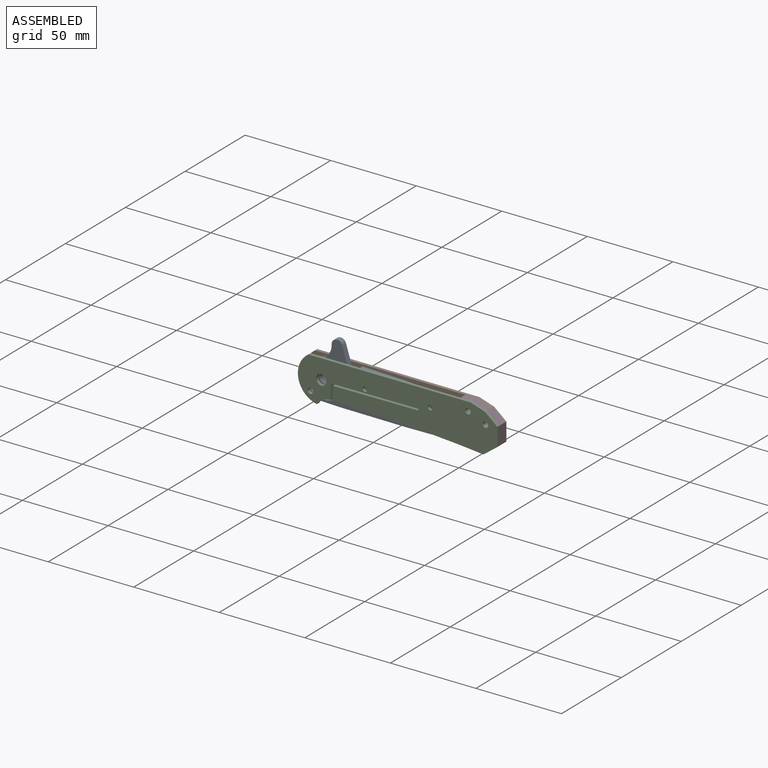
[diagram: assembled view]
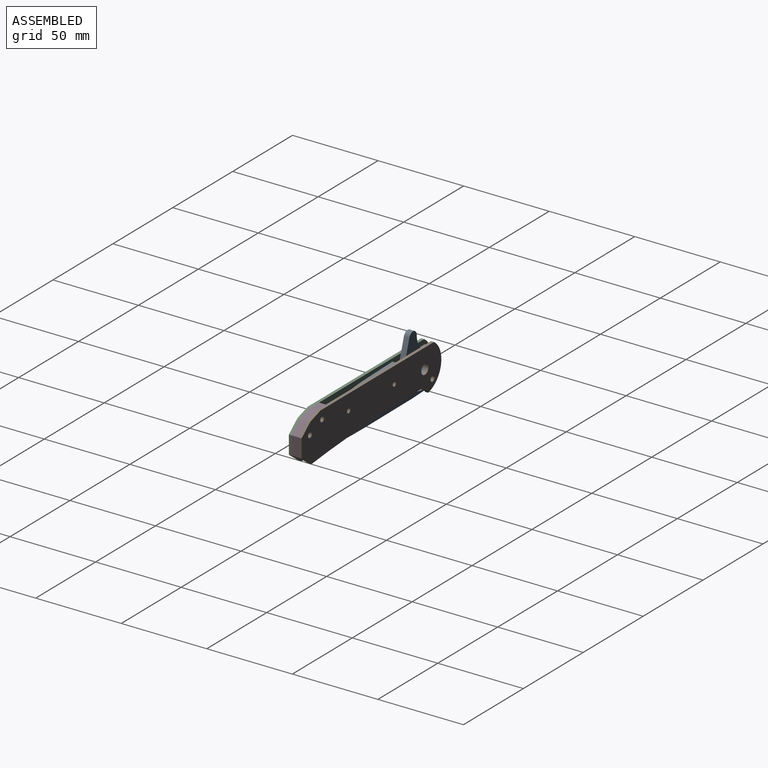
[diagram: assembled view, second angle]
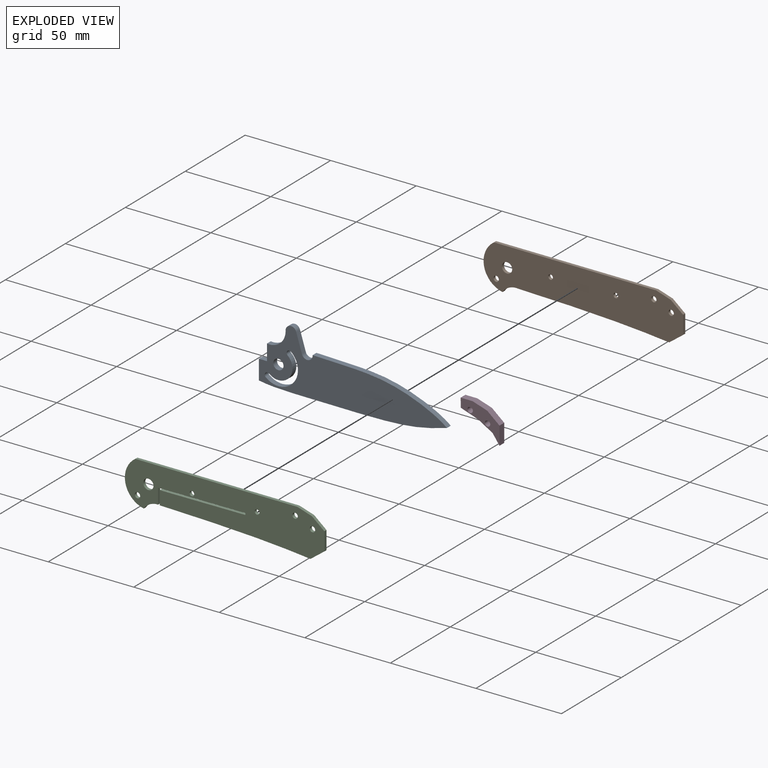
[diagram: exploded view]
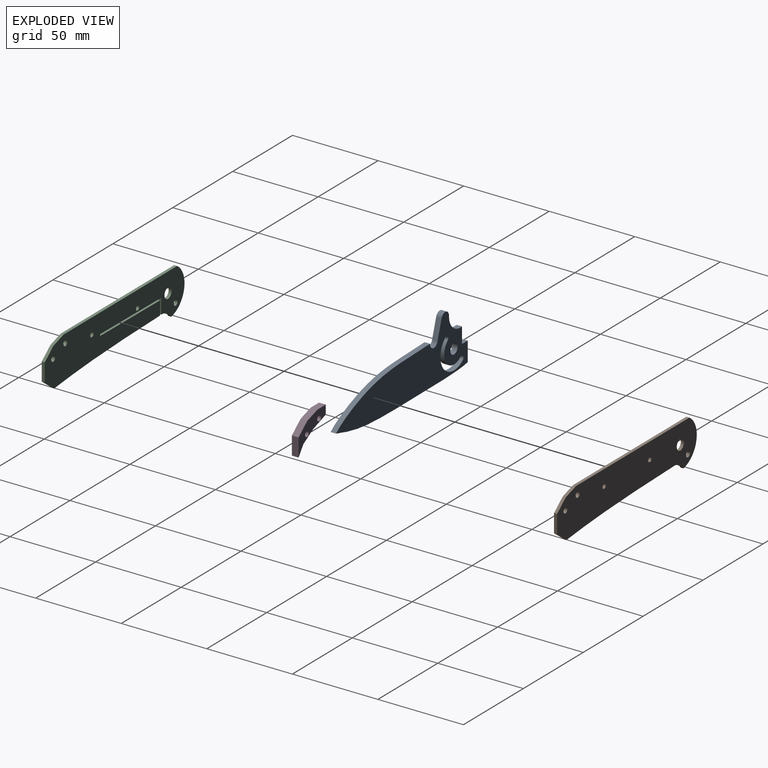
[diagram: exploded view, second angle]
ASSEMBLY  parts=4 mates=3
PART A: 16 faces, bbox 110x3.2x35.7 mm
  f0: cylinder r=1.59mm len=3.18mm, axis (0,1,0), area 15.8mm2, adj f1,f13,f14,f15
  f1: cylinder r=8.26mm len=14.53mm, axis (0,1,0), area 82.3mm2, adj f0,f2,f14,f15
  f2: cylinder r=1.59mm len=3.18mm, axis (0,1,0), area 15.8mm2, adj f1,f13,f14,f15
  f3: cylinder r=3.17mm len=6.22mm, axis (0,1,0), area 29.5mm2, adj f4,f11,f14,f15
  f4: plane 10.85x3.38mm, normal (-0.95,0,-0.3), area 36.1mm2, adj f3,f5,f14,f15
  f5: cylinder r=3.17mm len=6.21mm, axis (0,1,0), area 29.8mm2, adj f4,f6,f14,f15
  f6: cylinder r=9.53mm len=10.89mm, axis (0,1,0), area 52mm2, adj f5,f7,f14,f15
  f7: plane 9.28x3.18mm, normal (1,0,0), area 29.5mm2, adj f6,f8,f14,f15
  f8: plane 4.76x3.18mm, normal (0,0,-1), area 15.1mm2, adj f7,f9,f14,f15
  f9: plane 11.43x3.18mm, normal (1,0,0), area 36.3mm2, adj f8,f10,f14,f15
  f10: extruded ~109.99x6mm, area 351.4mm2, adj f9,f11,f14,f15
  f11: extruded ~78.55x17.49mm, area 260.2mm2, adj f3,f10,f14,f15
  f12: cylinder r=3mm len=5.99mm, axis (0,1,0), area 59.8mm2, adj f14,f15
  f13: cylinder r=11.43mm len=20.12mm, axis (0,1,0), area 114mm2, adj f0,f2,f14,f15
  f14: plane 109.99x35.71mm, normal (0,-1,0), area 2033.9mm2, adj f0,f1,f2,f3,f4,f5,f6,f7
  f15: plane 109.99x35.71mm, normal (0,1,0), area 2033.9mm2, adj f0,f1,f2,f3,f4,f5,f6,f7
PART B: 16 faces, bbox 116.6x1.8x25.4 mm
  f0: plane 8.56x2.72mm, normal (0.3,0,0.95), area 16mm2, adj f1,f12,f14,f15
  f1: plane 94.73x1.78mm, normal (0,0,1), area 168.4mm2, adj f0,f2,f14,f15
  f2: cylinder r=13.75mm len=24.92mm, axis (0,1,0), area 57.6mm2, adj f1,f3,f14,f15
  f3: cylinder r=9.53mm len=9.34mm, axis (0,1,0), area 19.2mm2, adj f2,f4,f14,f15
  f4: extruded ~88.1x4.73mm, area 156.9mm2, adj f3,f5,f14,f15
  f5: plane 8.11x6.09mm, normal (0.6,0,-0.8), area 18mm2, adj f4,f6,f14,f15
  f6: plane 10.65x1.78mm, normal (1,0,0), area 18.9mm2, adj f5,f12,f14,f15
  f7: cylinder r=1.59mm len=3.18mm, axis (0,1,0), area 17.7mm2, adj f14,f15
  f8: cylinder r=1.59mm len=3.18mm, axis (0,1,0), area 17.7mm2, adj f14,f15
  f9: cylinder r=1.59mm len=3.18mm, axis (0,1,0), area 17.7mm2, adj f14,f15
  f10: cylinder r=1.39mm len=2.78mm, axis (0,1,0), area 15.5mm2, adj f14,f15
  f11: cylinder r=1.39mm len=2.78mm, axis (0,1,0), area 15.5mm2, adj f14,f15
  f12: plane 7.22x5.99mm, normal (0.64,0,0.77), area 16.7mm2, adj f0,f6,f14,f15
  f13: cylinder r=3mm len=5.99mm, axis (0,1,0), area 33.5mm2, adj f14,f15
  f14: plane 116.62x25.45mm, normal (0,-1,0), area 2462.1mm2, adj f0,f1,f2,f3,f4,f5,f6,f7
  f15: plane 116.62x25.45mm, normal (0,1,0), area 2462.1mm2, adj f0,f1,f2,f3,f4,f5,f6,f7
PART C: 21 faces, bbox 116.6x1.8x25.4 mm
  f0: plane 8.01x1.78mm, normal (-1,0,0), area 14.2mm2, adj f1,f17,f19,f20
  f1: extruded ~88.1x4.73mm, area 156.9mm2, adj f0,f2,f19,f20
  f2: plane 8.11x6.09mm, normal (0.6,0,-0.8), area 18mm2, adj f1,f3,f19,f20
  f3: plane 10.65x1.78mm, normal (1,0,0), area 18.9mm2, adj f2,f4,f19,f20
  f4: plane 7.22x5.99mm, normal (0.64,0,0.77), area 16.7mm2, adj f3,f5,f19,f20
  f5: plane 8.56x2.72mm, normal (0.3,0,0.95), area 16mm2, adj f4,f6,f19,f20
  f6: plane 94.73x1.78mm, normal (0,0,1), area 168.4mm2, adj f5,f7,f19,f20
  f7: cylinder r=13.75mm len=24.92mm, axis (0,1,0), area 57.6mm2, adj f6,f8,f19,f20
  f8: cylinder r=9.53mm len=8.32mm, axis (0,1,0), area 17.4mm2, adj f7,f9,f19,f20
  f9: plane 8.93x1.78mm, normal (1,0,0), area 15.9mm2, adj f8,f10,f19,f20
  f10: plane 51.06x1.78mm, normal (0.01,0,-1), area 90.8mm2, adj f9,f11,f19,f20
  f11: plane 1.78x1.02mm, normal (-1,0,-0.01), area 1.8mm2, adj f10,f17,f19,f20
  f12: cylinder r=1.59mm len=3.18mm, axis (0,1,0), area 17.7mm2, adj f19,f20
  f13: cylinder r=1.39mm len=2.78mm, axis (0,1,0), area 15.5mm2, adj f19,f20
  f14: cylinder r=1.39mm len=2.78mm, axis (0,1,0), area 15.5mm2, adj f19,f20
  f15: cylinder r=1.59mm len=3.18mm, axis (0,1,0), area 17.7mm2, adj f19,f20
  f16: cylinder r=1.59mm len=3.18mm, axis (0,1,0), area 17.7mm2, adj f19,f20
  f17: plane 50.05x1.78mm, normal (-0.01,0,1), area 89mm2, adj f0,f11,f19,f20
  f18: cylinder r=3mm len=5.99mm, axis (0,1,0), area 33.5mm2, adj f19,f20
  f19: plane 116.62x25.45mm, normal (0,-1,0), area 2402.2mm2, adj f0,f1,f2,f3,f4,f5,f6,f7
  f20: plane 116.62x25.45mm, normal (0,1,0), area 2402.2mm2, adj f0,f1,f2,f3,f4,f5,f6,f7
PART D: 12 faces, bbox 22.7x3.9x19.4 mm
  f0: plane 8.56x3.94mm, normal (0.3,0,0.95), area 35.4mm2, adj f1,f9,f10,f11
  f1: plane 6.94x3.94mm, normal (0,0,1), area 27.3mm2, adj f0,f2,f10,f11
  f2: plane 5.3x3.94mm, normal (-1,0,-0.02), area 20.9mm2, adj f1,f3,f10,f11
  f3: plane 10.33x3.94mm, normal (-0.33,0,-0.95), area 43mm2, adj f2,f4,f10,f11
  f4: plane 8.3x4.89mm, normal (-0.51,0,-0.86), area 37.9mm2, adj f3,f5,f10,f11
  f5: plane 5.6x3.98mm, normal (-0.82,0,-0.58), area 27mm2, adj f4,f6,f10,f11
  f6: plane 10.65x3.94mm, normal (1,0,0), area 41.9mm2, adj f5,f9,f10,f11
  f7: cylinder r=1.59mm len=3.94mm, axis (0,1,0), area 39.3mm2, adj f10,f11
  f8: cylinder r=1.59mm len=3.94mm, axis (0,1,0), area 39.3mm2, adj f10,f11
  f9: plane 7.22x5.99mm, normal (0.64,0,0.77), area 36.9mm2, adj f0,f6,f10,f11
  f10: plane 22.72x19.35mm, normal (0,-1,0), area 164.5mm2, adj f0,f1,f2,f3,f4,f5,f6,f7
  f11: plane 22.72x19.35mm, normal (0,1,0), area 164.5mm2, adj f0,f1,f2,f3,f4,f5,f6,f7
PLACE A rot(axis=(0,-1,0),180deg) t=(54.23,20.02,-10.66)mm
PLACE B t=(-37.21,23.38,-13.2)mm fixed
PLACE C t=(-37.21,17.67,-13.2)mm
PLACE D t=(-37.21,21.61,-13.2)mm
MATE fastened D.f8 <-> B.f9  axis (0,1,0) through (104.4,21.61,-10.03)mm
MATE revolute B.f2 <-> A.f1  axis (0,-1,0) through (8.51,21.61,-11.93)mm
MATE fastened C.f15 <-> D.f7  axis (0,1,0) through (94.24,17.67,-5.58)mm
